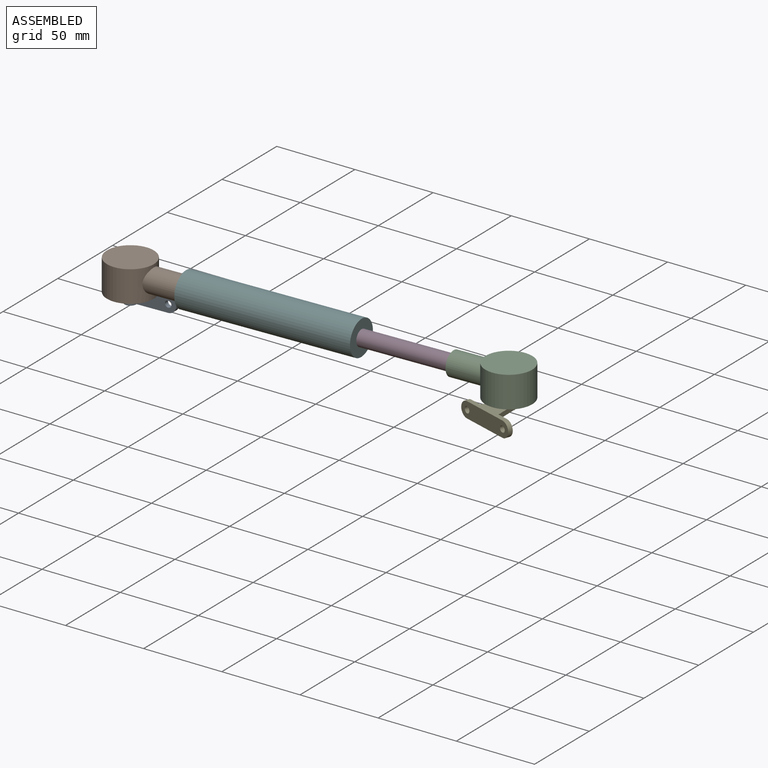
[diagram: assembled view]
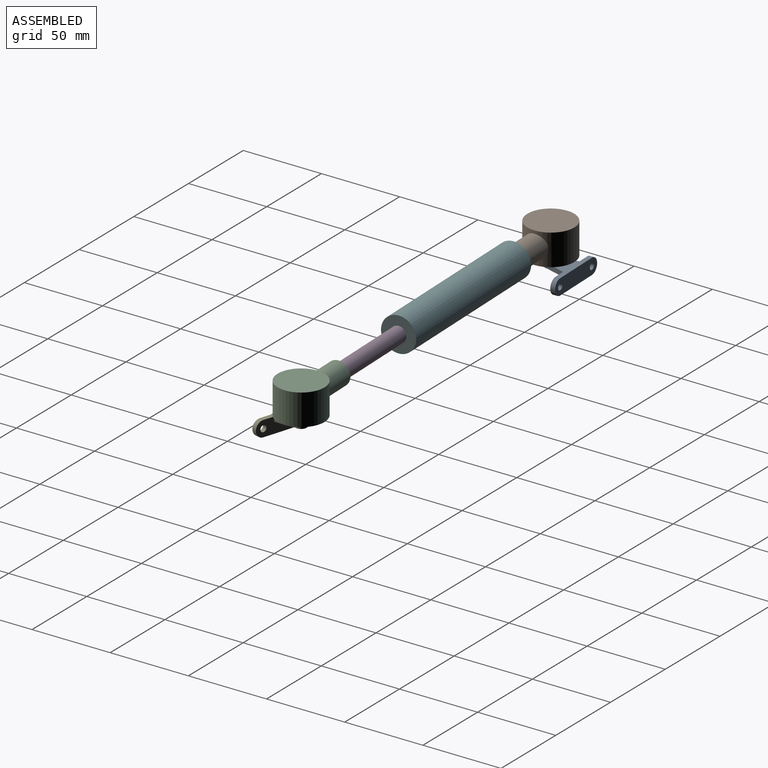
[diagram: assembled view, second angle]
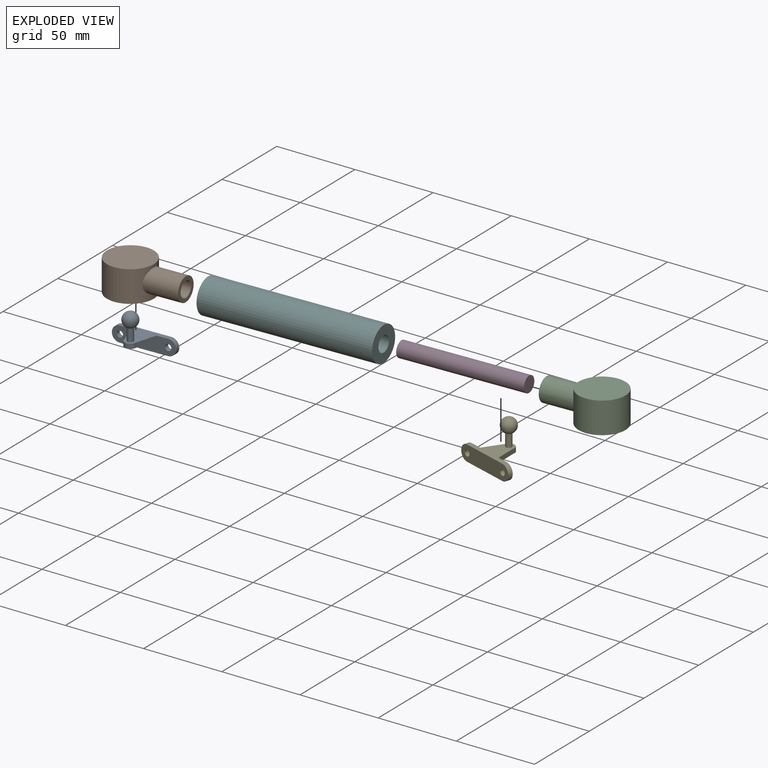
[diagram: exploded view]
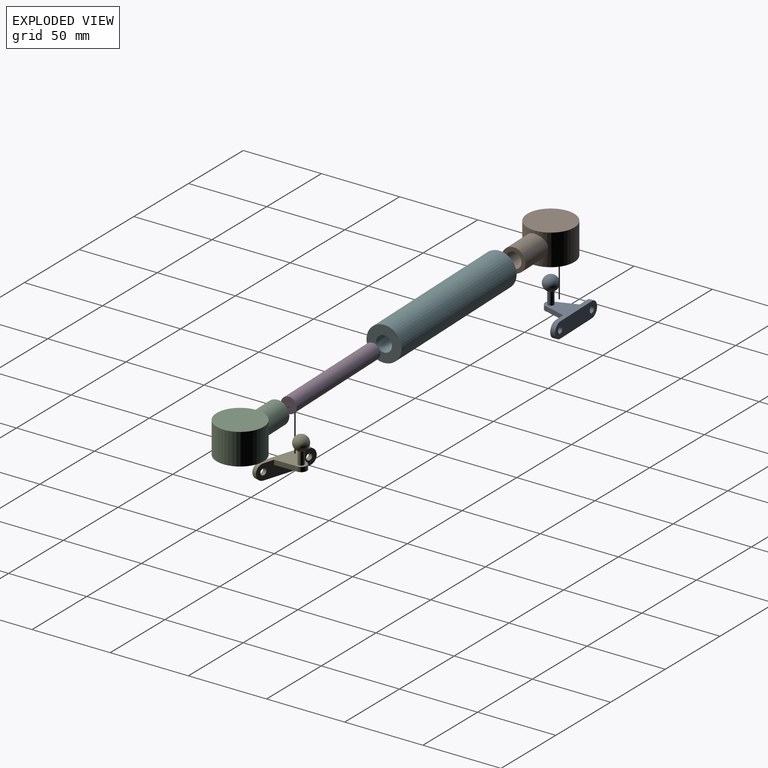
[diagram: exploded view, second angle]
ASSEMBLY  parts=6 mates=5
PART A: 14 faces, bbox 40.3x19.6x27 mm
  f0: cylinder r=1.94mm len=8mm, axis (0,0,-1), area 97.6mm2, adj f1,f6
  f1: torus R=0.06mm, axis (0,0,-1), area 270.6mm2, adj f0
  f2: plane 12.87x4.21mm, normal (-0.95,-0.31,0), area 40.6mm2, adj f4,f5,f6,f11
  f3: plane 12.87x4.21mm, normal (0.95,-0.31,0), area 40.6mm2, adj f4,f5,f6,f11
  f4: cylinder r=3.68mm len=7.37mm, axis (0,0,1), area 34.7mm2, adj f2,f3,f5,f6
  f5: plane 16.55x15.8mm, normal (0,0,-1), area 170.4mm2, adj f2,f3,f4,f11
  f6: plane 30.29x19.55mm, normal (0,0,1), area 249.4mm2, adj f0,f2,f3,f4,f7,f8,f10,f11
  f7: cylinder r=5mm len=10mm, axis (0,-1,0), area 47.1mm2, adj f6,f9,f10,f11
  f8: cylinder r=5mm len=10mm, axis (0,-1,0), area 47.1mm2, adj f6,f9,f10,f11
  f9: plane 30.29x3mm, normal (0,0,-1), area 90.9mm2, adj f7,f8,f10,f11
  f10: plane 40.29x10mm, normal (0,1,0), area 356.3mm2, adj f6,f7,f8,f9,f12,f13
  f11: plane 40.29x10mm, normal (0,-1,0), area 309mm2, adj f2,f3,f5,f6,f7,f8,f9,f12
  f12: cylinder r=2mm len=4mm, axis (0,-1,0), area 37.7mm2, adj f10,f11
  f13: cylinder r=2mm len=4mm, axis (0,-1,0), area 37.7mm2, adj f10,f11
PART B: 9 faces, bbox 50x29.9x20 mm
  f0: cylinder r=14.97mm len=29.95mm, axis (0,0,-1), area 1698.8mm2, adj f2,f3,f6
  f1: cylinder r=4.94mm len=15mm, axis (0,0,-1), area 465.5mm2, adj f2,f4
  f2: plane 29.95x29.95mm, normal (0,0,1), area 627.8mm2, adj f0,f1
  f3: plane 29.95x29.95mm, normal (0,0,-1), area 704.5mm2, adj f0
  f4: plane 9.88x9.88mm, normal (0,0,1), area 76.6mm2, adj f1
  f5: cylinder r=5mm len=21.04mm, axis (-1,0,0), area 642.7mm2, adj f7,f8
  f6: cylinder r=7.5mm len=22.29mm, axis (-1,0,0), area 990.6mm2, adj f0,f7
  f7: plane 15x15mm, normal (1,0,0), area 98.2mm2, adj f5,f6
  f8: cylinder r=14.97mm len=10mm, axis (0,0,-1), area 79.7mm2, adj f5
PART C: same geometry as B
PART D: 3 faces, bbox 80x10x10 mm
  f0: cylinder r=5mm len=80mm, axis (-1,0,0), area 2513.3mm2, adj f1,f2
  f1: plane 10x10mm, normal (1,0,0), area 78.5mm2, adj f0
  f2: plane 10x10mm, normal (-1,0,0), area 78.5mm2, adj f0
PART E: same geometry as A
PART F: 4 faces, bbox 110x22x22 mm
  f0: cylinder r=5mm len=110mm, axis (1,0,0), area 3455.8mm2, adj f2,f3
  f1: cylinder r=11mm len=110mm, axis (1,0,0), area 7602.7mm2, adj f2,f3
  f2: plane 22x22mm, normal (-1,0,0), area 301.6mm2, adj f0,f1
  f3: plane 22x22mm, normal (1,0,0), area 301.6mm2, adj f0,f1
PLACE A rot(axis=(0,0,1),1.8deg) t=(-248.93,36.27,-43.64)mm
PLACE B rot(axis=(1,0.02,0),180deg) t=(-248.45,20.92,-3.01)mm
PLACE C rot(axis=(-0.02,1,0),180deg) t=(-7.75,-76.37,-3.01)mm
PLACE D rot(axis=(1,0.02,0),180deg) t=(-101.89,-26.91,-12.4)mm
PLACE E rot(axis=(0,0,1),162.7deg) t=(-29.39,-88.7,-43.64)mm
PLACE F rot(axis=(1,0.02,0),180deg) t=(-101.89,-26.91,-12.4)mm
MATE fastened C.f5 <-> D.f0  axis (1,0.03,0) through (-21.93,-24.42,-12.4)mm
MATE fastened B.f5 <-> F.f0  axis (-1,-0.03,0) through (-211.83,-30.33,-12.4)mm
MATE slider D.f0 <-> F.f0  axis (-1,-0.03,0) through (-101.89,-26.91,-12.4)mm
MATE revolute A.f0 <-> B.f0  axis (0,0,-1) through (-246.83,-31,-13.01)mm
MATE revolute E.f0 <-> C.f0  axis (0,0,-1) through (-9.37,-24.45,-13.01)mm
